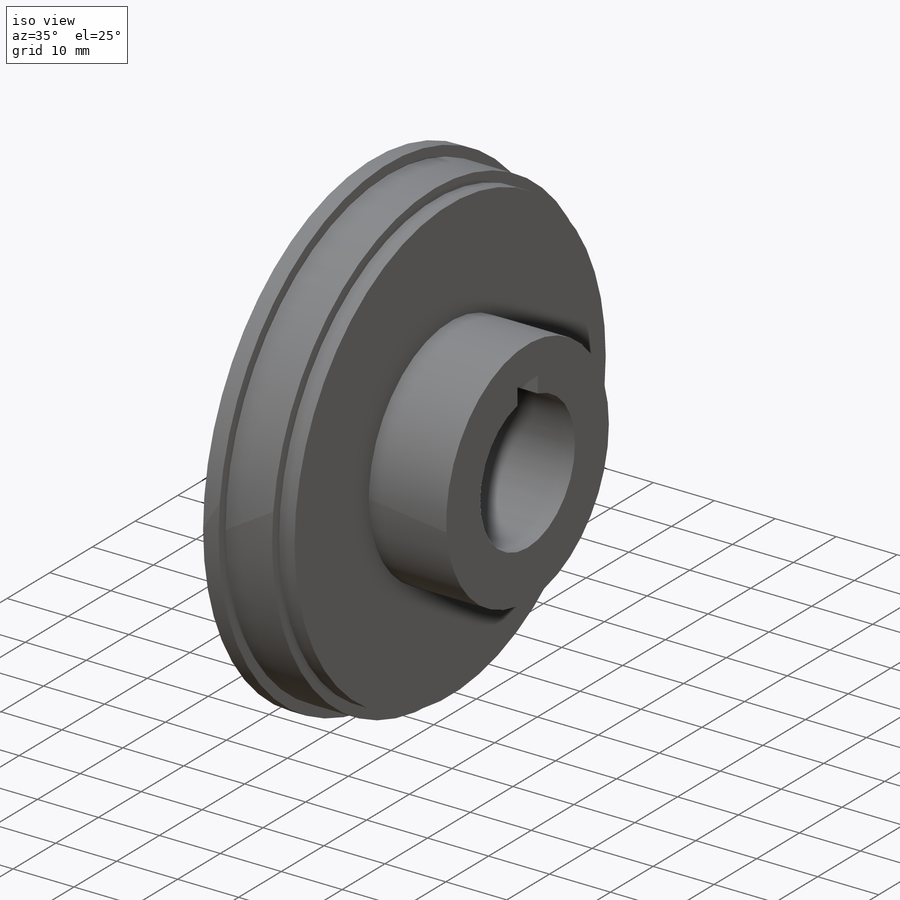
[diagram: iso view]
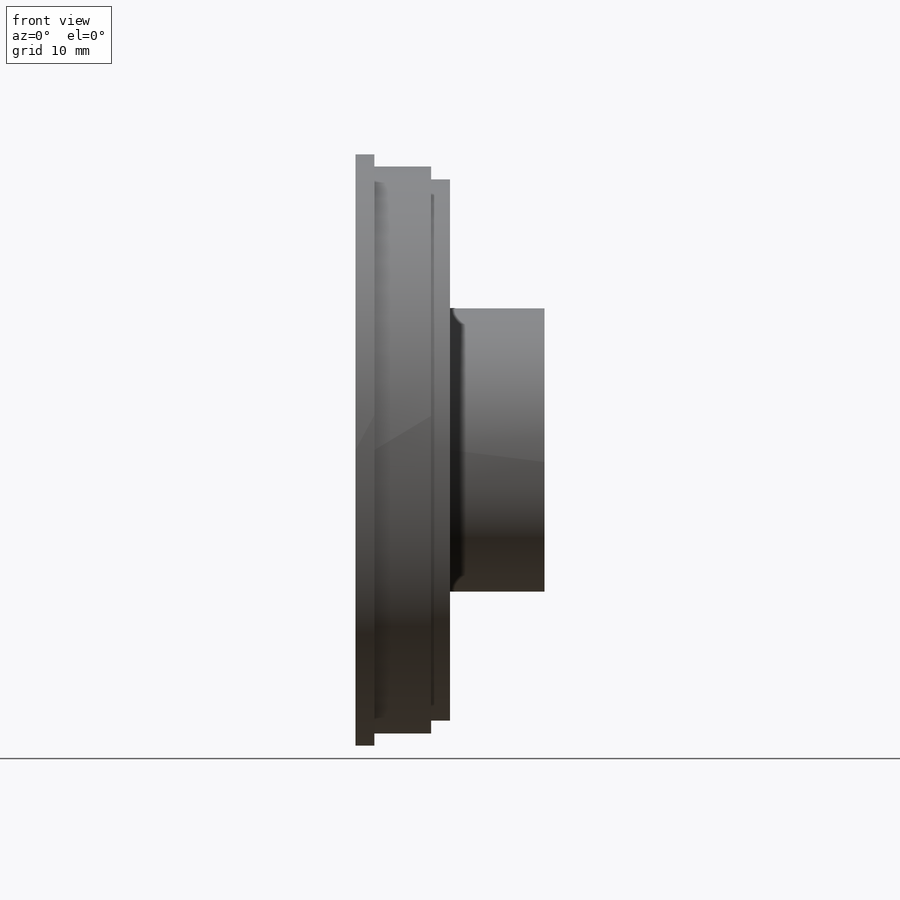
[diagram: front view]
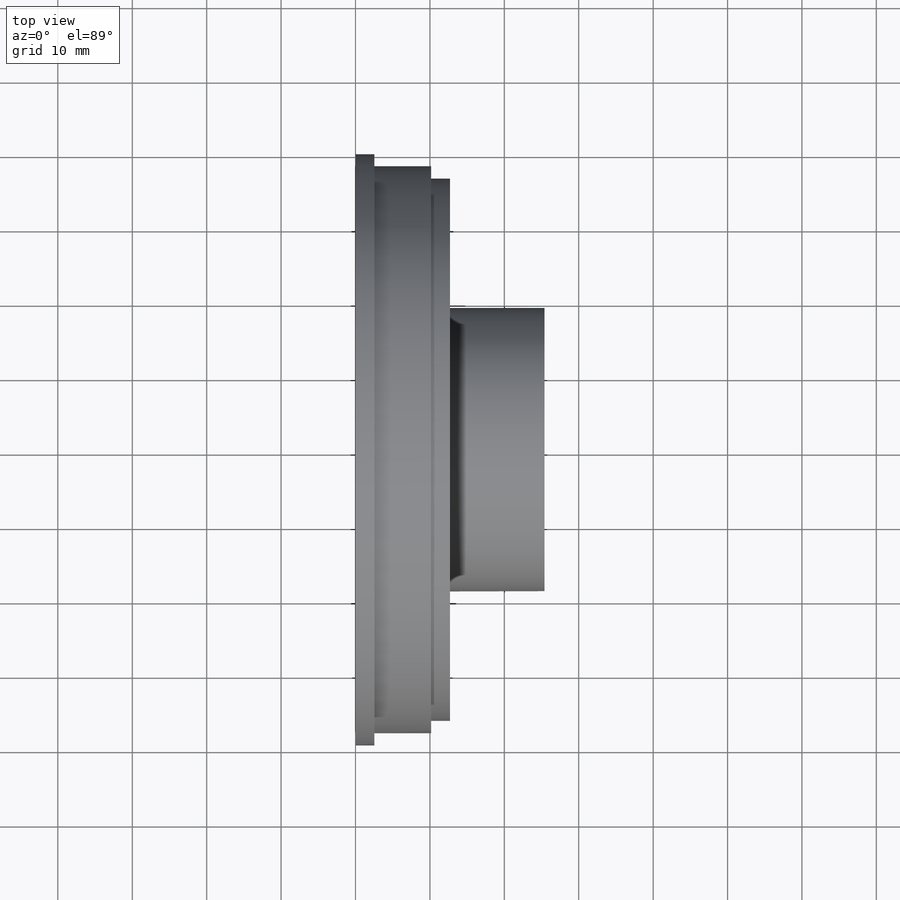
[diagram: top view]
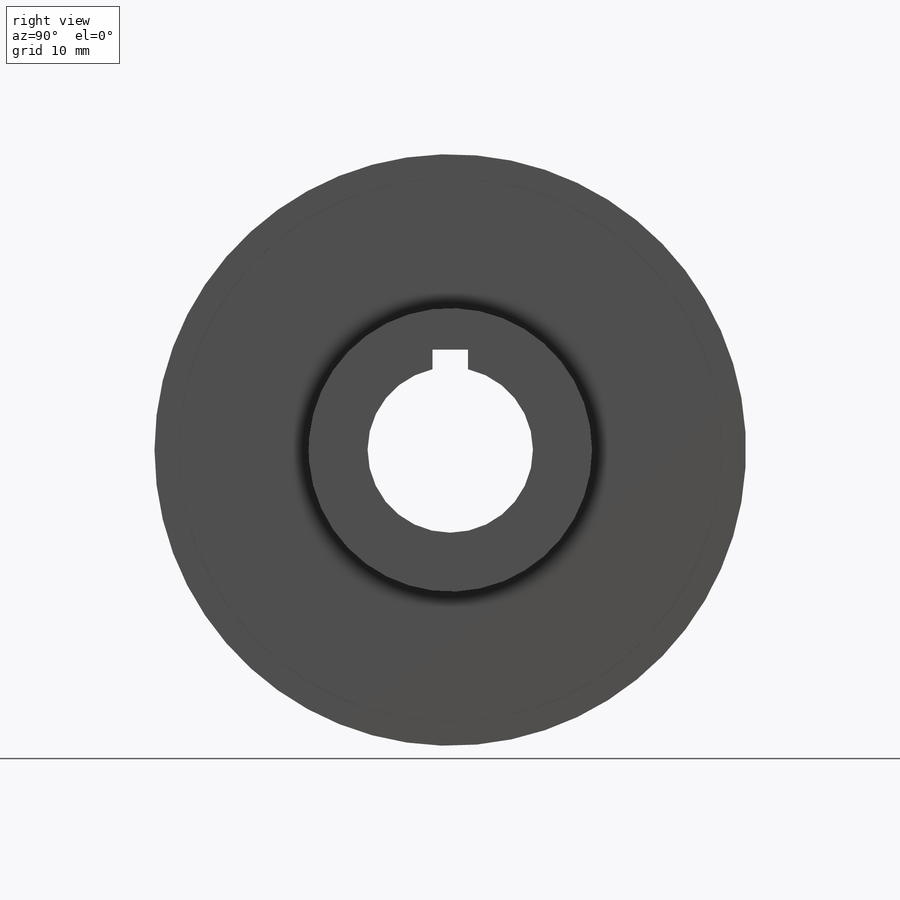
[diagram: right view]
SOLIDWORKS PART (.sldprt)
format: sldprt  version: not decoded by parser v0  size: 235,008 bytes
history: native  units: mm
features: sketch x6, extrude x3, cut_extrude x3, material x1, pattern_circular x1 (+13 scaffold rows collapsed)
feature tree (27):
  scaffold x13  (default folders/planes/origin — collapsed)
  material  "Plain Carbon Steel"
  sketch  "Sketch1"  dims[c1.D1=~5.620761mm c1.D4=22.225mm c2.D1=11.1125mm c2.D2=~2.38125mm c2.D3=4.7625mm]
  extrude  "Boss-Extrude1"  Depth=25.4mm
  sketch  "Sketch2"  dims[D1=~10.914062mm]
  extrude  "Boss-Extrude2"  Depth=12.7mm
  sketch  "Sketch3"  dims[D1=12.7mm]
  cut_extrude  "Cut-Extrude1"  [1 undecoded]
  sketch  "Sketch4"  dims[D1=24.13mm]
  cut_extrude  "Cut-Extrude2"  [1 undecoded]
  pattern_circular  "CirPattern1"  Count=6 Angle=360deg
  sketch  "Sketch5"  dims[D1=~41.280125mm]
  extrude  "Boss-Extrude3"  Depth=2.54mm
  sketch  "Sketch6"  dims[D1=~34.929487mm]
  cut_extrude  "Cut-Extrude3"  Depth=2.54mm
decode coverage: 11 of 13 modeling features carry decoded parameters
note: ~ marks probable driven/reference dimensions
note: 2 parameter values undecoded
note: suppression state not decoded; provenance and decode notes live in map.json
